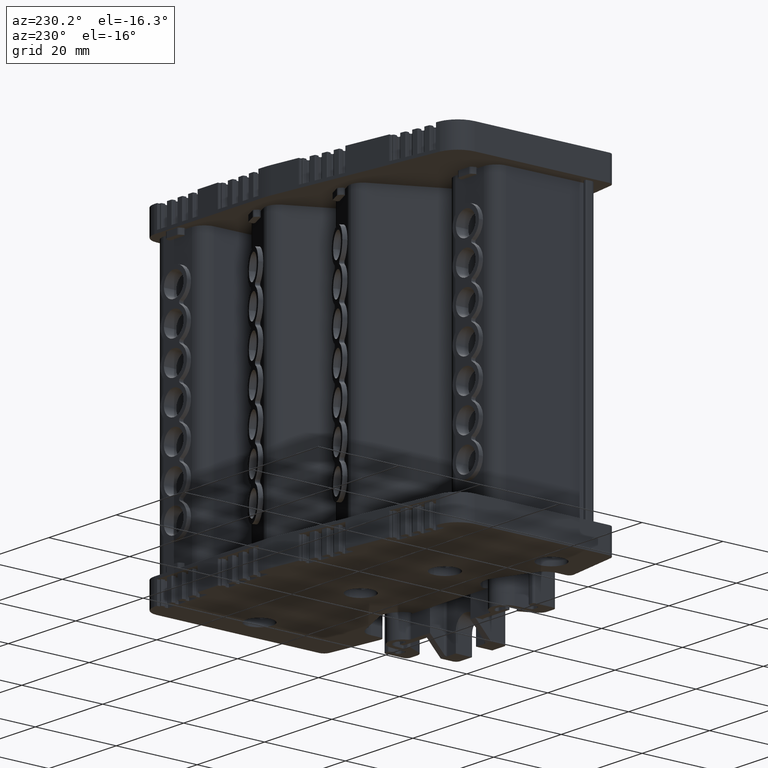
[diagram: clean part render]
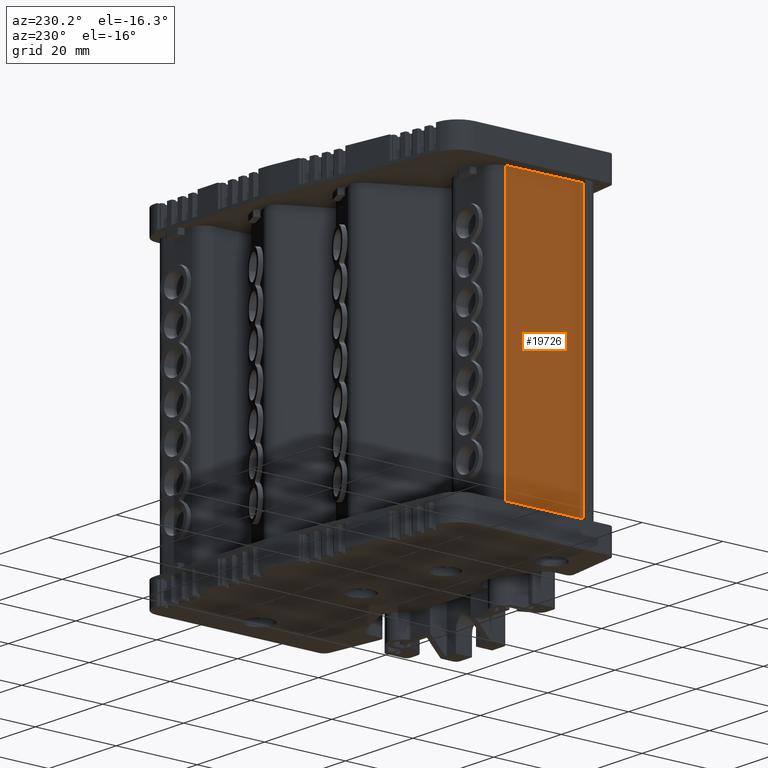
[diagram: same view with one face highlighted and labeled with its STEP entity id]
A machine part, auxiliary view. The second image highlights one B-rep face of the part: STEP entity #19726.
In plain terms, the highlighted planar face has unit normal (0.9998, -0.0175, -0).
Its self-contained STEP definition (entity closure, byte-faithful):
#2837 = EDGE_CURVE ( 'NONE', #78801, #79033, #43022, .T. ) ;
#11919 = ORIENTED_EDGE ( 'NONE', *, *, #19919, .F. ) ;
#11924 = ORIENTED_EDGE ( 'NONE', *, *, #19867, .F. ) ;
#11925 = ORIENTED_EDGE ( 'NONE', *, *, #19907, .F. ) ;
#12001 = ORIENTED_EDGE ( 'NONE', *, *, #2837, .F. ) ;
#19726 = ADVANCED_FACE ( 'NONE', ( #57983 ), #58018, .F. ) ;
#19867 = EDGE_CURVE ( 'NONE', #90465, #90350, #58808, .T. ) ;
#19907 = EDGE_CURVE ( 'NONE', #79033, #90465, #58875, .T. ) ;
#19919 = EDGE_CURVE ( 'NONE', #90350, #78801, #58930, .T. ) ;
#36377 = VECTOR ( 'NONE', #43036, 1000.000000000000000 ) ;
#43022 = LINE ( 'NONE', #43024, #36377 ) ;
#43024 = CARTESIAN_POINT ( 'NONE',  ( 353.2999876288033600, -86.71652198908056200, 96.12882012113554700 ) ) ;
#43036 = DIRECTION ( 'NONE',  ( -0.01745240644083070500, -0.9998476951563293200, -0.0000000000000000000 ) ) ;
#52764 = AXIS2_PLACEMENT_3D ( 'NONE', #58021, #58019, #57988 ) ;
#53036 = VECTOR ( 'NONE', #58807, 1000.000000000000000 ) ;
#53080 = VECTOR ( 'NONE', #58960, 1000.000000000000000 ) ;
#53141 = VECTOR ( 'NONE', #58886, 1000.000000000000000 ) ;
#57983 = FACE_OUTER_BOUND ( 'NONE', #80363, .T. ) ;
#57988 = DIRECTION ( 'NONE',  ( 0.01745240644083070500, 0.9998476951563293200, 0.0000000000000000000 ) ) ;
#58018 = PLANE ( 'NONE',  #52764 ) ;
#58019 = DIRECTION ( 'NONE',  ( 0.9998476951563293200, -0.01745240644083070500, -7.261879728953454200E-015 ) ) ;
#58021 = CARTESIAN_POINT ( 'NONE',  ( 353.2999876288028500, -86.71652198908053300, 27.59457769747924900 ) ) ;
#58807 = DIRECTION ( 'NONE',  ( 0.01745240644083792200, 0.9998476951563292100, 0.0000000000000000000 ) ) ;
#58808 = LINE ( 'NONE', #58811, #53036 ) ;
#58811 = CARTESIAN_POINT ( 'NONE',  ( 352.8994366712630000, -109.6640709730305200, 28.59460800001209400 ) ) ;
#58875 = LINE ( 'NONE', #58878, #53141 ) ;
#58878 = CARTESIAN_POINT ( 'NONE',  ( 352.8994366712631200, -109.6640709730310700, 27.59457769747924900 ) ) ;
#58886 = DIRECTION ( 'NONE',  ( -7.260773709496580500E-015, 1.267372765541251900E-016, -1.000000000000000000 ) ) ;
#58930 = LINE ( 'NONE', #58951, #53080 ) ;
#58951 = CARTESIAN_POINT ( 'NONE',  ( 353.2302173438120000, -90.71365893837240400, 40.78957769736548800 ) ) ;
#58960 = DIRECTION ( 'NONE',  ( 6.982962677686110500E-015, -1.604252062634190000E-014, 1.000000000000000000 ) ) ;
#69697 = CARTESIAN_POINT ( 'NONE',  ( 353.2302173438123400, -90.71365893837166500, 96.12882012113554700 ) ) ;
#69856 = CARTESIAN_POINT ( 'NONE',  ( 352.8994366712636300, -109.6640709730310700, 96.12882012113547600 ) ) ;
#75550 = CARTESIAN_POINT ( 'NONE',  ( 353.2302173438118900, -90.71365893837055700, 28.59460800001208000 ) ) ;
#75658 = CARTESIAN_POINT ( 'NONE',  ( 352.8994366712630600, -109.6640709730305500, 28.59460800001209100 ) ) ;
#78801 = VERTEX_POINT ( 'NONE', #69697 ) ;
#79033 = VERTEX_POINT ( 'NONE', #69856 ) ;
#80363 = EDGE_LOOP ( 'NONE', ( #11925, #12001, #11919, #11924 ) ) ;
#90350 = VERTEX_POINT ( 'NONE', #75550 ) ;
#90465 = VERTEX_POINT ( 'NONE', #75658 ) ;